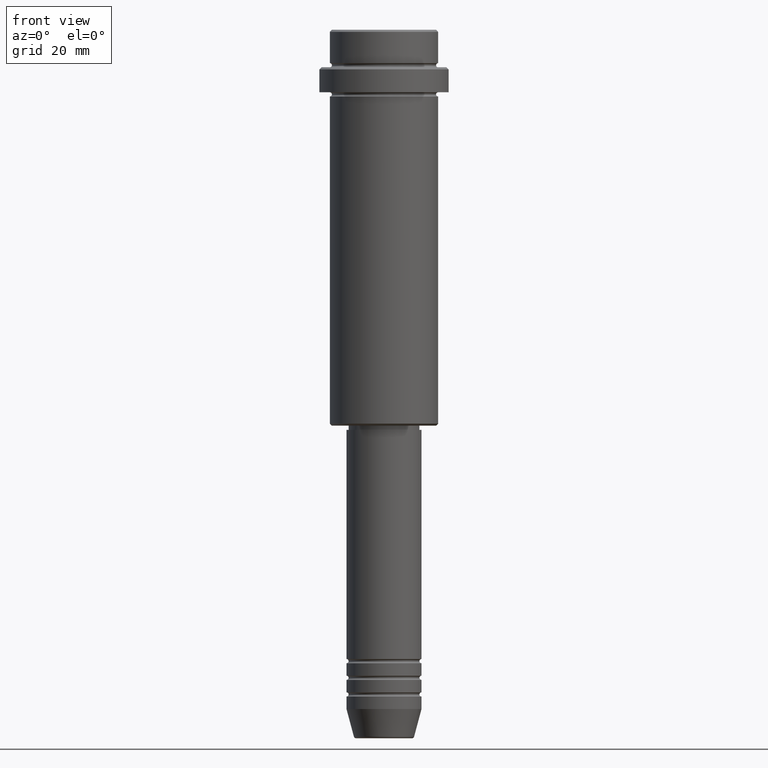
[diagram: clean part render]
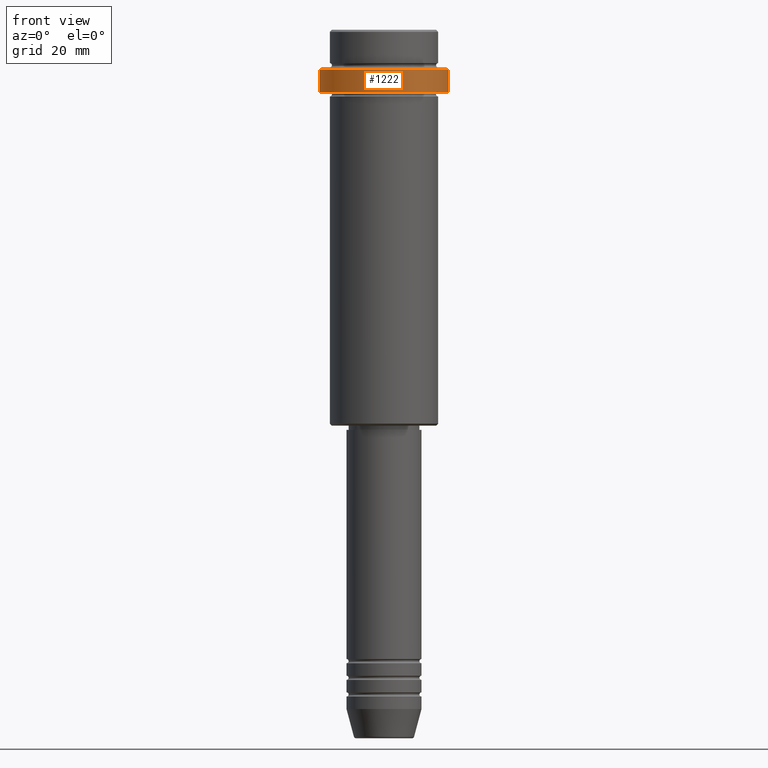
[diagram: same view with one face highlighted and labeled with its STEP entity id]
A machine part, front view. The second image highlights one B-rep face of the part: STEP entity #1222.
In plain terms, the highlighted cylindrical surface (partial cylindrical patch) has radius 15.5 mm, axis along (-0, -0, 1).
Its self-contained STEP definition (entity closure, byte-faithful):
#17 = EDGE_LOOP ( 'NONE', ( #883, #1369, #344, #794 ) ) ;
#18 = EDGE_CURVE ( 'NONE', #382, #672, #61, .T. ) ;
#24 = CARTESIAN_POINT ( 'NONE',  ( -15.50000000000000000, 1.898202538678397557E-15, -15.00000000000000000 ) ) ;
#29 = CARTESIAN_POINT ( 'NONE',  ( 15.50000000000000000, 0.000000000000000000, -15.00000000000000000 ) ) ;
#51 = AXIS2_PLACEMENT_3D ( 'NONE', #1226, #1326, #123 ) ;
#61 = LINE ( 'NONE', #486, #1207 ) ;
#67 = CARTESIAN_POINT ( 'NONE',  ( 0.000000000000000000, 0.000000000000000000, -9.500000000000026645 ) ) ;
#123 = DIRECTION ( 'NONE',  ( 1.000000000000000000, 0.000000000000000000, 0.000000000000000000 ) ) ;
#155 = DIRECTION ( 'NONE',  ( -0.000000000000000000, -0.000000000000000000, 1.000000000000000000 ) ) ;
#176 = CARTESIAN_POINT ( 'NONE',  ( 0.000000000000000000, 0.000000000000000000, 0.000000000000000000 ) ) ;
#193 = DIRECTION ( 'NONE',  ( 0.000000000000000000, 0.000000000000000000, -1.000000000000000000 ) ) ;
#221 = CARTESIAN_POINT ( 'NONE',  ( -15.50000000000000000, 1.898202538678397557E-15, -9.500000000000026645 ) ) ;
#298 = AXIS2_PLACEMENT_3D ( 'NONE', #176, #770, #664 ) ;
#306 = EDGE_CURVE ( 'NONE', #535, #382, #657, .T. ) ;
#315 = VECTOR ( 'NONE', #155, 1000.000000000000000 ) ;
#341 = AXIS2_PLACEMENT_3D ( 'NONE', #67, #193, #1072 ) ;
#344 = ORIENTED_EDGE ( 'NONE', *, *, #18, .T. ) ;
#382 = VERTEX_POINT ( 'NONE', #29 ) ;
#486 = CARTESIAN_POINT ( 'NONE',  ( 15.50000000000000000, 0.000000000000000000, 0.000000000000000000 ) ) ;
#535 = VERTEX_POINT ( 'NONE', #24 ) ;
#569 = CIRCLE ( 'NONE', #341, 15.50000000000000000 ) ;
#603 = EDGE_CURVE ( 'NONE', #535, #1007, #1129, .T. ) ;
#657 = CIRCLE ( 'NONE', #51, 15.50000000000000000 ) ;
#664 = DIRECTION ( 'NONE',  ( 1.000000000000000000, 0.000000000000000000, 0.000000000000000000 ) ) ;
#672 = VERTEX_POINT ( 'NONE', #1381 ) ;
#770 = DIRECTION ( 'NONE',  ( -0.000000000000000000, -0.000000000000000000, 1.000000000000000000 ) ) ;
#794 = ORIENTED_EDGE ( 'NONE', *, *, #1211, .T. ) ;
#883 = ORIENTED_EDGE ( 'NONE', *, *, #603, .F. ) ;
#923 = DIRECTION ( 'NONE',  ( -0.000000000000000000, -0.000000000000000000, 1.000000000000000000 ) ) ;
#1007 = VERTEX_POINT ( 'NONE', #221 ) ;
#1019 = CARTESIAN_POINT ( 'NONE',  ( -15.50000000000000000, 1.898202538678397557E-15, 0.000000000000000000 ) ) ;
#1072 = DIRECTION ( 'NONE',  ( 1.000000000000000000, 0.000000000000000000, 0.000000000000000000 ) ) ;
#1129 = LINE ( 'NONE', #1019, #315 ) ;
#1158 = CYLINDRICAL_SURFACE ( 'NONE', #298, 15.50000000000000000 ) ;
#1207 = VECTOR ( 'NONE', #923, 1000.000000000000000 ) ;
#1211 = EDGE_CURVE ( 'NONE', #672, #1007, #569, .T. ) ;
#1222 = ADVANCED_FACE ( 'NONE', ( #1399 ), #1158, .T. ) ;
#1226 = CARTESIAN_POINT ( 'NONE',  ( 0.000000000000000000, 0.000000000000000000, -15.00000000000000000 ) ) ;
#1326 = DIRECTION ( 'NONE',  ( -0.000000000000000000, -0.000000000000000000, 1.000000000000000000 ) ) ;
#1369 = ORIENTED_EDGE ( 'NONE', *, *, #306, .T. ) ;
#1381 = CARTESIAN_POINT ( 'NONE',  ( 15.50000000000000000, 0.000000000000000000, -9.500000000000026645 ) ) ;
#1399 = FACE_OUTER_BOUND ( 'NONE', #17, .T. ) ;